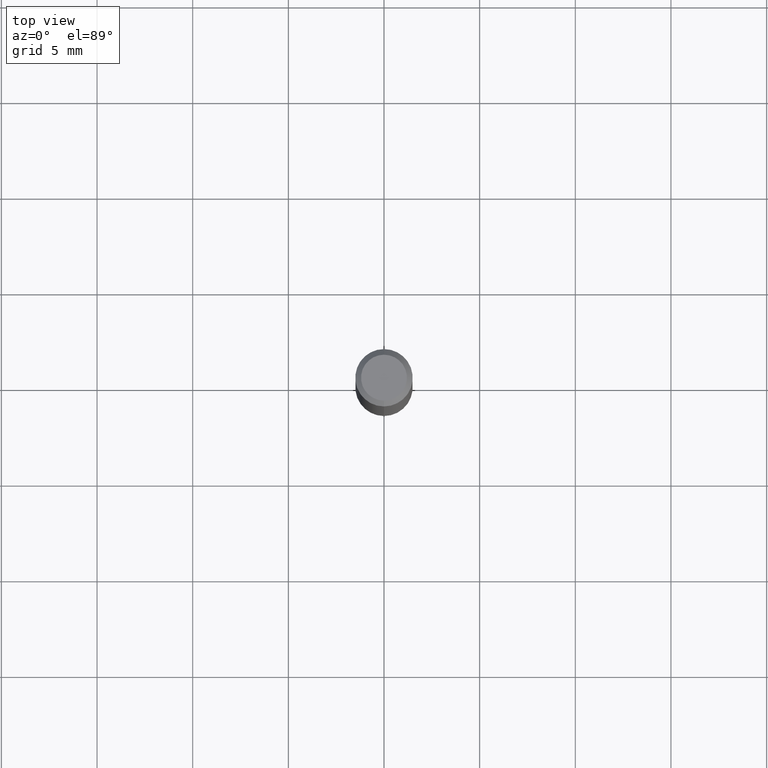
[diagram: clean part render]
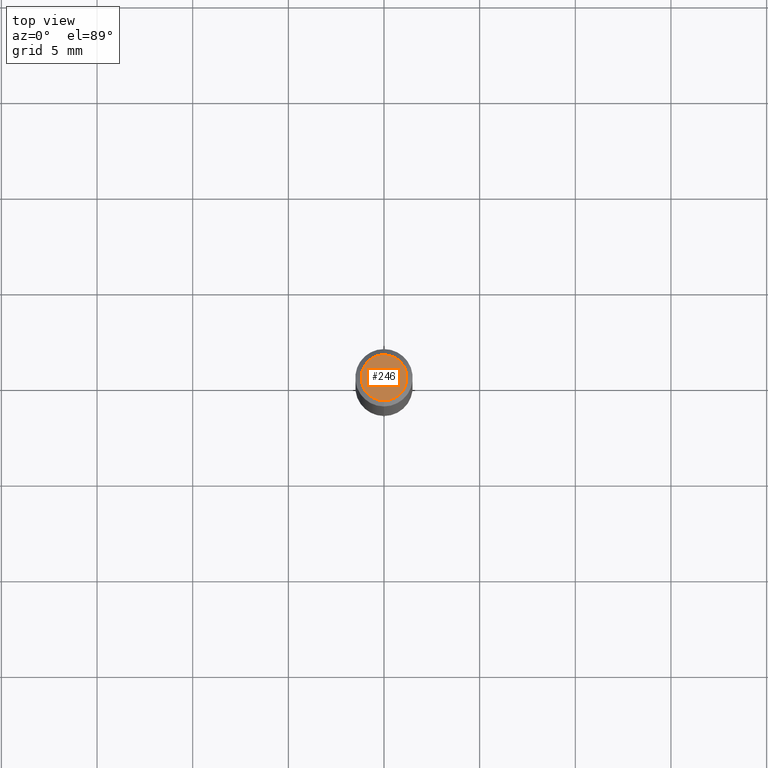
[diagram: same view with one face highlighted and labeled with its STEP entity id]
A machine part, top view. The second image highlights one B-rep face of the part: STEP entity #246.
In plain terms, the highlighted planar face has unit normal (-0, 0, 1).
Its self-contained STEP definition (entity closure, byte-faithful):
#176=EDGE_CURVE('',#256,#212,#362,.T.);
#212=VERTEX_POINT('',#403);
#232=EDGE_CURVE('',#212,#256,#425,.T.);
#246=ADVANCED_FACE('',(#439),#440,.T.);
#256=VERTEX_POINT('',#450);
#362=CIRCLE('',#573,1.2);
#403=CARTESIAN_POINT('',(0.0,1.2,0.0));
#425=CIRCLE('',#652,1.2);
#439=FACE_OUTER_BOUND('',#673,.T.);
#440=PLANE('',#674);
#450=CARTESIAN_POINT('',(1.46952762458685E-016,-1.2,0.0));
#573=AXIS2_PLACEMENT_3D('',#809,#810,#811);
#652=AXIS2_PLACEMENT_3D('',#880,#881,#882);
#673=EDGE_LOOP('',(#895,#896));
#674=AXIS2_PLACEMENT_3D('',#897,#898,#899);
#809=CARTESIAN_POINT('',(0.0,0.0,0.0));
#810=DIRECTION('',(0.0,0.0,-1.0));
#811=DIRECTION('',(0.0,1.0,0.0));
#880=CARTESIAN_POINT('',(0.0,0.0,0.0));
#881=DIRECTION('',(0.0,0.0,-1.0));
#882=DIRECTION('',(0.0,1.0,0.0));
#895=ORIENTED_EDGE('',*,*,#232,.F.);
#896=ORIENTED_EDGE('',*,*,#176,.F.);
#897=CARTESIAN_POINT('',(0.0,0.6,0.0));
#898=DIRECTION('',(-0.0,0.0,1.0));
#899=DIRECTION('',(0.0,-1.0,0.0));